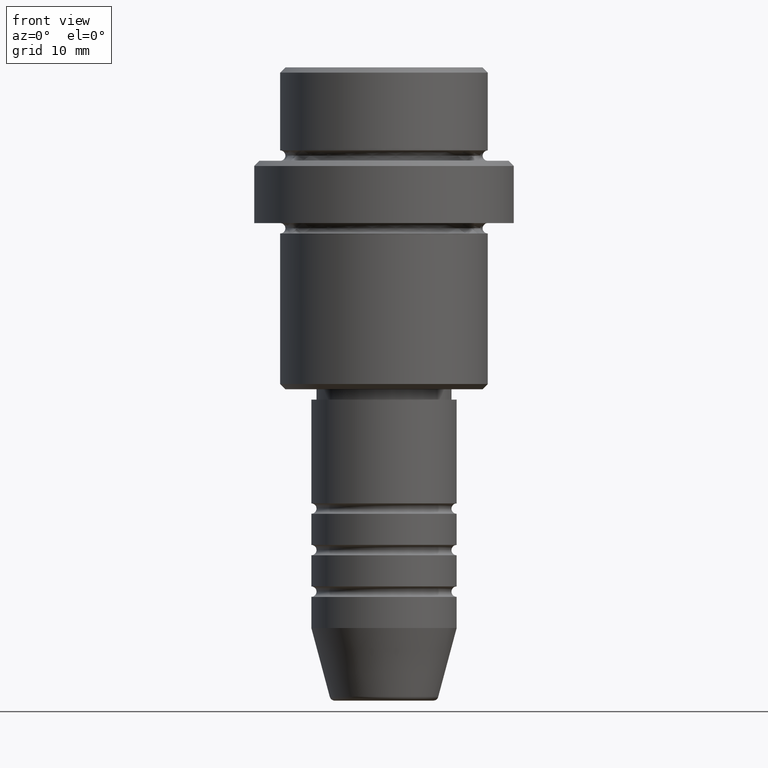
[diagram: clean part render]
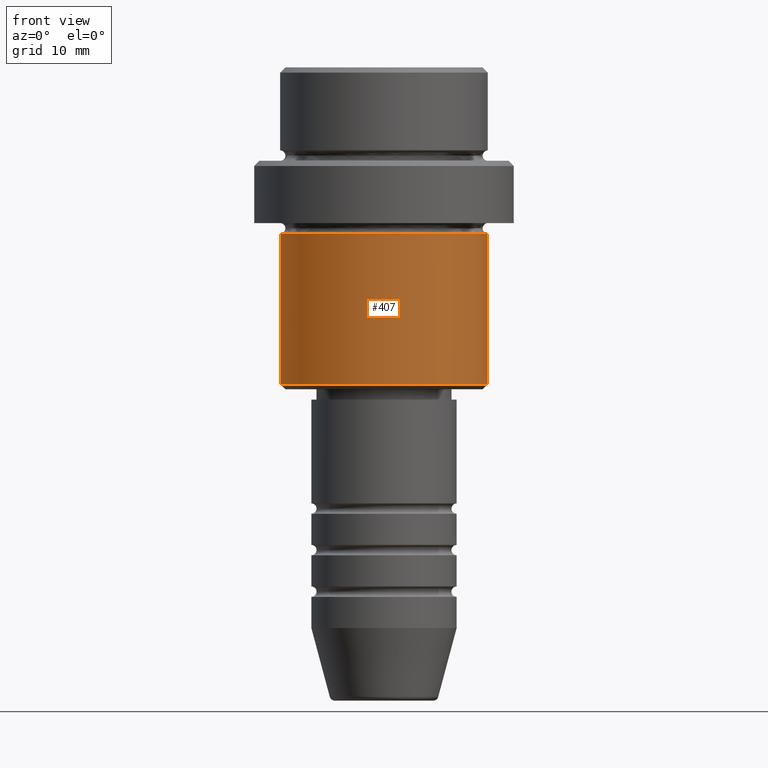
[diagram: same view with one face highlighted and labeled with its STEP entity id]
A machine part, front view. The second image highlights one B-rep face of the part: STEP entity #407.
In plain terms, the highlighted cylindrical surface (partial cylindrical patch) has radius 10 mm, axis along (-0, -0, 1).
Its self-contained STEP definition (entity closure, byte-faithful):
#2 = DIRECTION ( 'NONE',  ( 1.000000000000000000, 0.000000000000000000, 0.000000000000000000 ) ) ;
#35 = CARTESIAN_POINT ( 'NONE',  ( -9.999999999999998224, 1.224646799147353059E-15, -30.49999999999998934 ) ) ;
#36 = ORIENTED_EDGE ( 'NONE', *, *, #252, .F. ) ;
#92 = VERTEX_POINT ( 'NONE', #35 ) ;
#97 = AXIS2_PLACEMENT_3D ( 'NONE', #650, #435, #2 ) ;
#98 = CIRCLE ( 'NONE', #276, 9.999999999999998224 ) ;
#151 = DIRECTION ( 'NONE',  ( -0.000000000000000000, -0.000000000000000000, 1.000000000000000000 ) ) ;
#252 = EDGE_CURVE ( 'NONE', #92, #734, #737, .T. ) ;
#276 = AXIS2_PLACEMENT_3D ( 'NONE', #1117, #151, #950 ) ;
#293 = CYLINDRICAL_SURFACE ( 'NONE', #445, 9.999999999999998224 ) ;
#320 = DIRECTION ( 'NONE',  ( -0.000000000000000000, -0.000000000000000000, 1.000000000000000000 ) ) ;
#330 = CIRCLE ( 'NONE', #97, 9.999999999999998224 ) ;
#364 = ORIENTED_EDGE ( 'NONE', *, *, #731, .T. ) ;
#407 = ADVANCED_FACE ( 'NONE', ( #688 ), #293, .T. ) ;
#424 = DIRECTION ( 'NONE',  ( 1.000000000000000000, 0.000000000000000000, 0.000000000000000000 ) ) ;
#435 = DIRECTION ( 'NONE',  ( -0.000000000000000000, -0.000000000000000000, 1.000000000000000000 ) ) ;
#445 = AXIS2_PLACEMENT_3D ( 'NONE', #1158, #1394, #424 ) ;
#500 = DIRECTION ( 'NONE',  ( -0.000000000000000000, -0.000000000000000000, 1.000000000000000000 ) ) ;
#501 = EDGE_CURVE ( 'NONE', #734, #961, #330, .T. ) ;
#534 = CARTESIAN_POINT ( 'NONE',  ( -9.999999999999998224, 1.224646799147353059E-15, 0.000000000000000000 ) ) ;
#646 = EDGE_LOOP ( 'NONE', ( #36, #364, #1376, #1196 ) ) ;
#650 = CARTESIAN_POINT ( 'NONE',  ( 0.000000000000000000, 0.000000000000000000, -16.00000000000000000 ) ) ;
#688 = FACE_OUTER_BOUND ( 'NONE', #646, .T. ) ;
#717 = CARTESIAN_POINT ( 'NONE',  ( 9.999999999999998224, 0.000000000000000000, -30.49999999999998934 ) ) ;
#731 = EDGE_CURVE ( 'NONE', #92, #884, #98, .T. ) ;
#734 = VERTEX_POINT ( 'NONE', #1141 ) ;
#737 = LINE ( 'NONE', #534, #840 ) ;
#840 = VECTOR ( 'NONE', #320, 1000.000000000000000 ) ;
#884 = VERTEX_POINT ( 'NONE', #717 ) ;
#940 = LINE ( 'NONE', #1285, #1177 ) ;
#950 = DIRECTION ( 'NONE',  ( -1.000000000000000000, 0.000000000000000000, 0.000000000000000000 ) ) ;
#961 = VERTEX_POINT ( 'NONE', #1316 ) ;
#1117 = CARTESIAN_POINT ( 'NONE',  ( 0.000000000000000000, 0.000000000000000000, -30.49999999999998934 ) ) ;
#1141 = CARTESIAN_POINT ( 'NONE',  ( -9.999999999999998224, 1.224646799147353059E-15, -16.00000000000000000 ) ) ;
#1149 = EDGE_CURVE ( 'NONE', #884, #961, #940, .T. ) ;
#1158 = CARTESIAN_POINT ( 'NONE',  ( 0.000000000000000000, 0.000000000000000000, 0.000000000000000000 ) ) ;
#1177 = VECTOR ( 'NONE', #500, 1000.000000000000000 ) ;
#1196 = ORIENTED_EDGE ( 'NONE', *, *, #501, .F. ) ;
#1285 = CARTESIAN_POINT ( 'NONE',  ( 9.999999999999998224, 0.000000000000000000, 0.000000000000000000 ) ) ;
#1316 = CARTESIAN_POINT ( 'NONE',  ( 9.999999999999998224, 0.000000000000000000, -16.00000000000000000 ) ) ;
#1376 = ORIENTED_EDGE ( 'NONE', *, *, #1149, .T. ) ;
#1394 = DIRECTION ( 'NONE',  ( -0.000000000000000000, -0.000000000000000000, 1.000000000000000000 ) ) ;